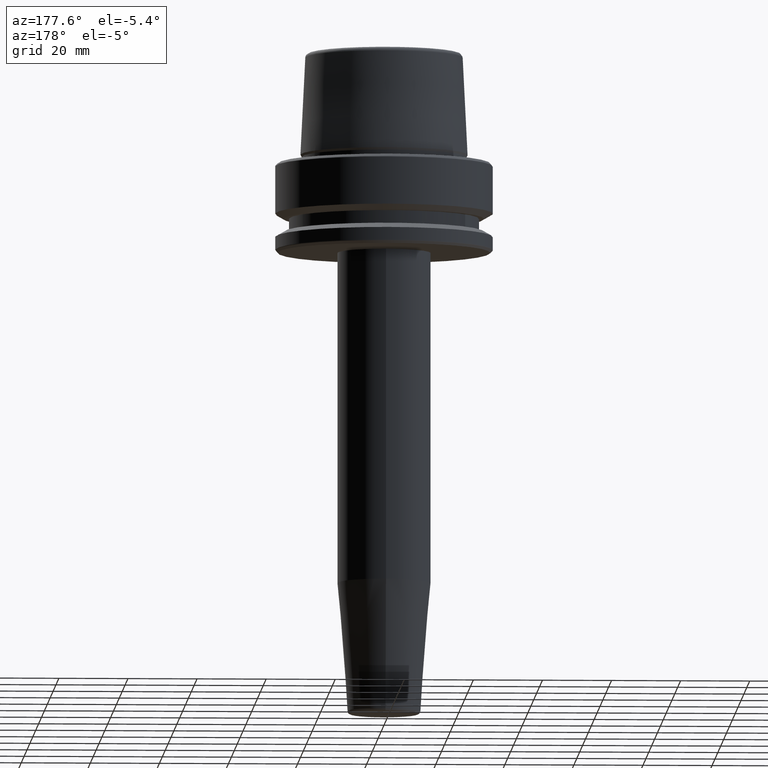
[diagram: clean part render]
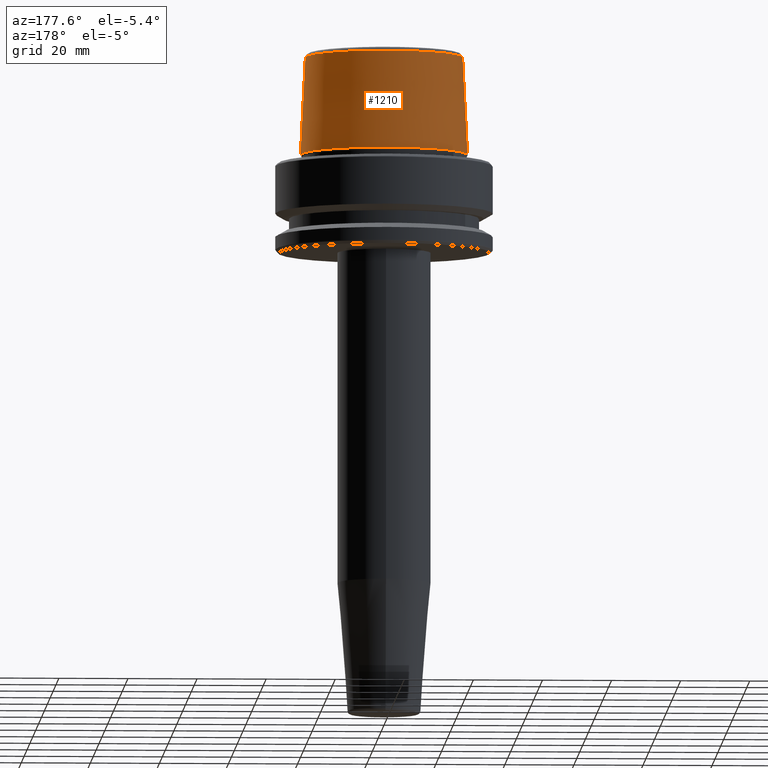
[diagram: same view with one face highlighted and labeled with its STEP entity id]
A machine part, auxiliary view. The second image highlights one B-rep face of the part: STEP entity #1210.
In plain terms, the highlighted conical surface has half-angle 2.868 deg.
Its self-contained STEP definition (entity closure, byte-faithful):
#27 = DIRECTION ( 'NONE',  ( -0.0000000000000000000, -0.0000000000000000000, 1.000000000000000000 ) ) ;
#121 = VECTOR ( 'NONE', #137, 1000.000000000000200 ) ;
#129 = ORIENTED_EDGE ( 'NONE', *, *, #907, .T. ) ;
#137 = DIRECTION ( 'NONE',  ( 0.05003611051310804400, 6.127656258166099700E-018, -0.9987474093306675200 ) ) ;
#213 = EDGE_LOOP ( 'NONE', ( #1226, #129, #337, #904 ) ) ;
#244 = DIRECTION ( 'NONE',  ( -0.05003611051310804400, 0.0000000000000000000, -0.9987474093306675200 ) ) ;
#248 = AXIS2_PLACEMENT_3D ( 'NONE', #392, #293, #489 ) ;
#262 = VERTEX_POINT ( 'NONE', #462 ) ;
#293 = DIRECTION ( 'NONE',  ( 0.0000000000000000000, 0.0000000000000000000, -1.000000000000000000 ) ) ;
#337 = ORIENTED_EDGE ( 'NONE', *, *, #1105, .T. ) ;
#375 = DIRECTION ( 'NONE',  ( -0.0000000000000000000, -0.0000000000000000000, 1.000000000000000000 ) ) ;
#392 = CARTESIAN_POINT ( 'NONE',  ( 0.0000000000000000000, 0.0000000000000000000, 2.500000000000002200 ) ) ;
#438 = CARTESIAN_POINT ( 'NONE',  ( 24.19537568275369200, 2.963078938405201500E-015, 2.500000000000002200 ) ) ;
#462 = CARTESIAN_POINT ( 'NONE',  ( -22.77957961851797100, 0.0000000000000000000, 30.76004333261571900 ) ) ;
#489 = DIRECTION ( 'NONE',  ( -1.000000000000000000, 0.0000000000000000000, 0.0000000000000000000 ) ) ;
#512 = CIRCLE ( 'NONE', #787, 22.77957961851797100 ) ;
#524 = CARTESIAN_POINT ( 'NONE',  ( -24.19537568275369200, 2.963078938405201500E-015, 2.500000000000002200 ) ) ;
#624 = CARTESIAN_POINT ( 'NONE',  ( 0.0000000000000000000, 0.0000000000000000000, 30.76004333261571900 ) ) ;
#630 = EDGE_CURVE ( 'NONE', #1253, #262, #512, .T. ) ;
#646 = CARTESIAN_POINT ( 'NONE',  ( -24.19537568275369200, 0.0000000000000000000, 2.500000000000002200 ) ) ;
#670 = VERTEX_POINT ( 'NONE', #524 ) ;
#708 = AXIS2_PLACEMENT_3D ( 'NONE', #957, #375, #1048 ) ;
#726 = DIRECTION ( 'NONE',  ( 1.000000000000000000, 0.0000000000000000000, 0.0000000000000000000 ) ) ;
#730 = VERTEX_POINT ( 'NONE', #731 ) ;
#731 = CARTESIAN_POINT ( 'NONE',  ( 24.19537568275369200, 0.0000000000000000000, 2.500000000000002200 ) ) ;
#785 = VECTOR ( 'NONE', #244, 1000.000000000000200 ) ;
#787 = AXIS2_PLACEMENT_3D ( 'NONE', #624, #27, #726 ) ;
#793 = CARTESIAN_POINT ( 'NONE',  ( 22.77957961851797100, 2.876386432489616700E-015, 30.76004333261571900 ) ) ;
#853 = FACE_OUTER_BOUND ( 'NONE', #213, .T. ) ;
#902 = LINE ( 'NONE', #438, #121 ) ;
#904 = ORIENTED_EDGE ( 'NONE', *, *, #970, .F. ) ;
#907 = EDGE_CURVE ( 'NONE', #1253, #730, #902, .T. ) ;
#957 = CARTESIAN_POINT ( 'NONE',  ( 0.0000000000000000000, 0.0000000000000000000, 2.500000000000002200 ) ) ;
#970 = EDGE_CURVE ( 'NONE', #262, #670, #1034, .T. ) ;
#979 = CIRCLE ( 'NONE', #708, 24.19537568275369200 ) ;
#989 = CONICAL_SURFACE ( 'NONE', #248, 24.19537568275369200, 0.05005701257455997400 ) ;
#1034 = LINE ( 'NONE', #646, #785 ) ;
#1048 = DIRECTION ( 'NONE',  ( 1.000000000000000000, 0.0000000000000000000, 0.0000000000000000000 ) ) ;
#1105 = EDGE_CURVE ( 'NONE', #730, #670, #979, .T. ) ;
#1210 = ADVANCED_FACE ( 'NONE', ( #853 ), #989, .T. ) ;
#1226 = ORIENTED_EDGE ( 'NONE', *, *, #630, .F. ) ;
#1253 = VERTEX_POINT ( 'NONE', #793 ) ;